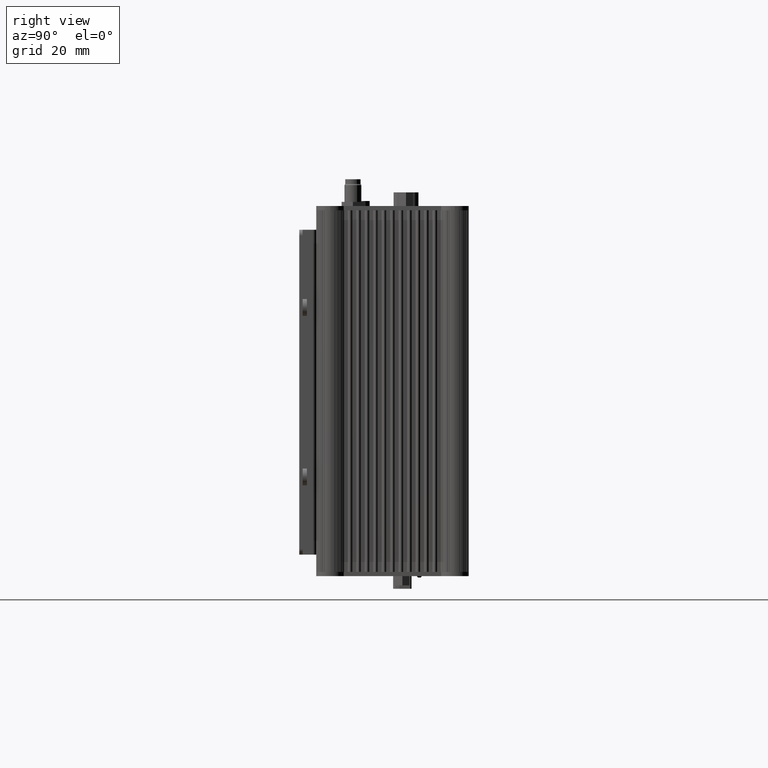
[diagram: clean part render]
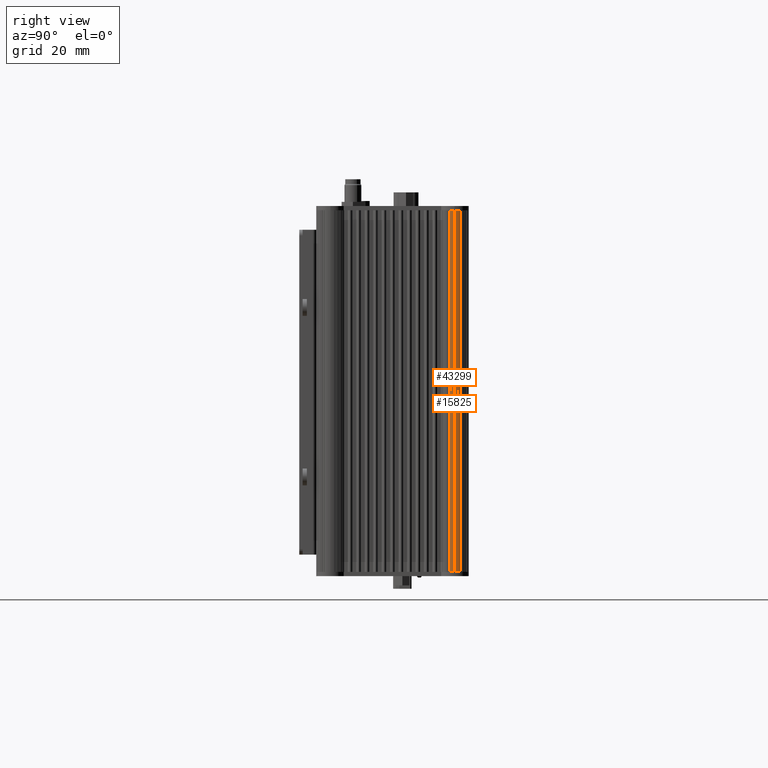
[diagram: same view with one multi-face feature highlighted, each face labeled with its STEP entity id]
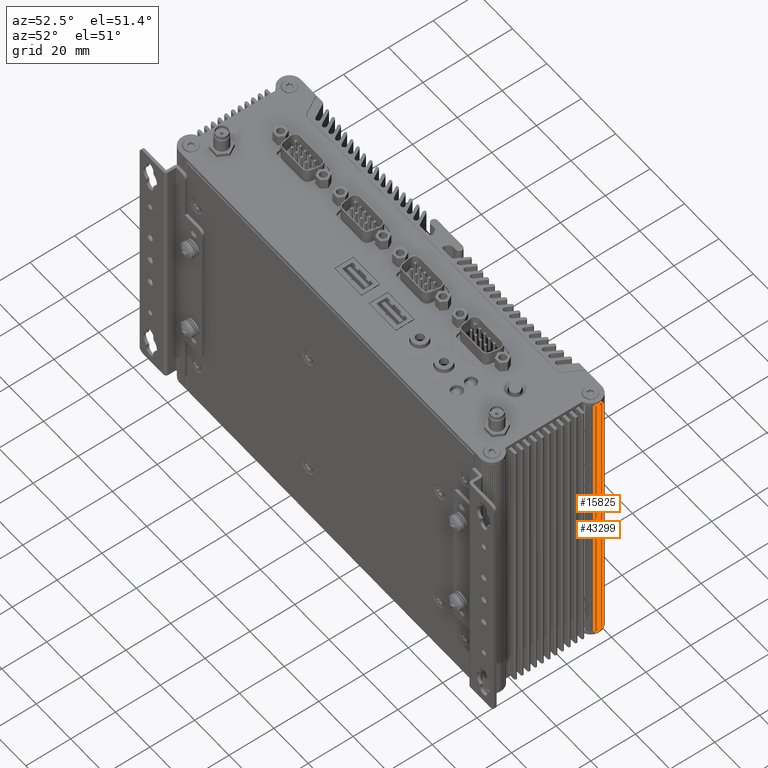
[diagram: same view with one multi-face feature highlighted, each face labeled with its STEP entity id]
A machine part, right view. The highlighted faces form ONE feature: a constant-radius fillet chain: 2 tangent blend faces with common blend radius 5 mm. The faces share edges in the B-rep.
A second angle (auxiliary view) of the same feature is appended — it is thin or edge-on in the first view.
Their STEP definitions:
[1] entity #15825 (Cylinder):
#350 = EDGE_CURVE ( 'NONE', #55630, #55328, #37267, .T. ) ;
#4861 = EDGE_CURVE ( 'NONE', #55328, #20845, #30022, .T. ) ;
#4862 = EDGE_CURVE ( 'NONE', #20237, #55630, #30026, .T. ) ;
#4868 = EDGE_CURVE ( 'NONE', #20237, #20845, #90871, .T. ) ;
#14861 = EDGE_LOOP ( 'NONE', ( #68562, #68561, #68560, #68559 ) ) ;
#15825 = ADVANCED_FACE ( 'NONE', ( #70659 ), #70662, .T. ) ;
#20237 = VERTEX_POINT ( 'NONE', #41203 ) ;
#20845 = VERTEX_POINT ( 'NONE', #41440 ) ;
#26281 = AXIS2_PLACEMENT_3D ( 'NONE', #70660, #70656, #70663 ) ;
#30022 = CIRCLE ( 'NONE', #30028, 5.000000000007928800 ) ;
#30026 = CIRCLE ( 'NONE', #30033, 5.000000000007928800 ) ;
#30028 = AXIS2_PLACEMENT_3D ( 'NONE', #90856, #90857, #90858 ) ;
#30033 = AXIS2_PLACEMENT_3D ( 'NONE', #90861, #90862, #90863 ) ;
#30051 = VECTOR ( 'NONE', #90879, 1000.000000000000000 ) ;
#37267 = LINE ( 'NONE', #37280, #62791 ) ;
#37280 = CARTESIAN_POINT ( 'NONE',  ( 120.8838196477089600, 13.78363130392962300, -130.9999999999813600 ) ) ;
#37287 = DIRECTION ( 'NONE',  ( 0.0000000000000000000, 0.0000000000000000000, 1.000000000000000000 ) ) ;
#41203 = CARTESIAN_POINT ( 'NONE',  ( 120.5039922049252500, 15.69517663207424500, -129.4999999999813600 ) ) ;
#41440 = CARTESIAN_POINT ( 'NONE',  ( 120.5039922049252500, 15.69517663207424500, -1.499999999981362200 ) ) ;
#55328 = VERTEX_POINT ( 'NONE', #91311 ) ;
#55630 = VERTEX_POINT ( 'NONE', #91613 ) ;
#62791 = VECTOR ( 'NONE', #37287, 1000.000000000000000 ) ;
#68559 = ORIENTED_EDGE ( 'NONE', *, *, #4861, .F. ) ;
#68560 = ORIENTED_EDGE ( 'NONE', *, *, #4868, .T. ) ;
#68561 = ORIENTED_EDGE ( 'NONE', *, *, #4862, .F. ) ;
#68562 = ORIENTED_EDGE ( 'NONE', *, *, #350, .F. ) ;
#70656 = DIRECTION ( 'NONE',  ( 0.0000000000000000000, 0.0000000000000000000, 1.000000000000000000 ) ) ;
#70659 = FACE_OUTER_BOUND ( 'NONE', #14861, .T. ) ;
#70660 = CARTESIAN_POINT ( 'NONE',  ( 115.8838196477010300, 13.78363130392962300, -130.9999999999813600 ) ) ;
#70662 = CYLINDRICAL_SURFACE ( 'NONE', #26281, 5.000000000007928800 ) ;
#70663 = DIRECTION ( 'NONE',  ( 1.000000000000000000, 0.0000000000000000000, 0.0000000000000000000 ) ) ;
#90856 = CARTESIAN_POINT ( 'NONE',  ( 115.8838196477010300, 13.78363130392962300, -1.499999999981362200 ) ) ;
#90857 = DIRECTION ( 'NONE',  ( -0.0000000000000000000, 0.0000000000000000000, 1.000000000000000000 ) ) ;
#90858 = DIRECTION ( 'NONE',  ( 1.000000000000000000, 0.0000000000000000000, 0.0000000000000000000 ) ) ;
#90861 = CARTESIAN_POINT ( 'NONE',  ( 115.8838196477010300, 13.78363130392962300, -129.4999999999813600 ) ) ;
#90862 = DIRECTION ( 'NONE',  ( 0.0000000000000000000, 0.0000000000000000000, -1.000000000000000000 ) ) ;
#90863 = DIRECTION ( 'NONE',  ( -1.000000000000000000, 0.0000000000000000000, 0.0000000000000000000 ) ) ;
#90871 = LINE ( 'NONE', #90872, #30051 ) ;
#90872 = CARTESIAN_POINT ( 'NONE',  ( 120.5039922049252500, 15.69517663207424500, -130.9999999999813600 ) ) ;
#90879 = DIRECTION ( 'NONE',  ( 0.0000000000000000000, 0.0000000000000000000, 1.000000000000000000 ) ) ;
#91311 = CARTESIAN_POINT ( 'NONE',  ( 120.8838196477089600, 13.78363130392962300, -1.499999999981362200 ) ) ;
#91613 = CARTESIAN_POINT ( 'NONE',  ( 120.8838196477089600, 13.78363130392962300, -129.4999999999813600 ) ) ;
[2] entity #43299 (Cylinder):
#314 = EDGE_CURVE ( 'NONE', #54419, #55328, #62725, .T. ) ;
#316 = EDGE_CURVE ( 'NONE', #55630, #55455, #62743, .T. ) ;
#349 = EDGE_CURVE ( 'NONE', #55455, #54419, #37248, .T. ) ;
#350 = EDGE_CURVE ( 'NONE', #55630, #55328, #37267, .T. ) ;
#13171 = EDGE_LOOP ( 'NONE', ( #52206, #52216, #52211, #52096 ) ) ;
#37248 = LINE ( 'NONE', #37252, #62787 ) ;
#37252 = CARTESIAN_POINT ( 'NONE',  ( 120.5977029717044600, 12.11650683114389600, -130.9999999999813600 ) ) ;
#37267 = LINE ( 'NONE', #37280, #62791 ) ;
#37278 = DIRECTION ( 'NONE',  ( 0.0000000000000000000, 0.0000000000000000000, 1.000000000000000000 ) ) ;
#37280 = CARTESIAN_POINT ( 'NONE',  ( 120.8838196477089600, 13.78363130392962300, -130.9999999999813600 ) ) ;
#37287 = DIRECTION ( 'NONE',  ( 0.0000000000000000000, 0.0000000000000000000, 1.000000000000000000 ) ) ;
#43299 = ADVANCED_FACE ( 'NONE', ( #92875 ), #92878, .T. ) ;
#43833 = AXIS2_PLACEMENT_3D ( 'NONE', #92876, #92868, #92879 ) ;
#52096 = ORIENTED_EDGE ( 'NONE', *, *, #349, .F. ) ;
#52206 = ORIENTED_EDGE ( 'NONE', *, *, #316, .F. ) ;
#52211 = ORIENTED_EDGE ( 'NONE', *, *, #314, .F. ) ;
#52216 = ORIENTED_EDGE ( 'NONE', *, *, #350, .T. ) ;
#53815 = CARTESIAN_POINT ( 'NONE',  ( 115.8838196477010300, 13.78363130392962300, -1.499999999981362200 ) ) ;
#53816 = DIRECTION ( 'NONE',  ( -0.0000000000000000000, 0.0000000000000000000, 1.000000000000000000 ) ) ;
#53817 = DIRECTION ( 'NONE',  ( 1.000000000000000000, 0.0000000000000000000, 0.0000000000000000000 ) ) ;
#53823 = CARTESIAN_POINT ( 'NONE',  ( 115.8838196477010300, 13.78363130392962300, -129.4999999999813600 ) ) ;
#53824 = DIRECTION ( 'NONE',  ( 0.0000000000000000000, 0.0000000000000000000, -1.000000000000000000 ) ) ;
#53825 = DIRECTION ( 'NONE',  ( -1.000000000000000000, 0.0000000000000000000, 0.0000000000000000000 ) ) ;
#54419 = VERTEX_POINT ( 'NONE', #55685 ) ;
#55328 = VERTEX_POINT ( 'NONE', #91311 ) ;
#55455 = VERTEX_POINT ( 'NONE', #91438 ) ;
#55630 = VERTEX_POINT ( 'NONE', #91613 ) ;
#55685 = CARTESIAN_POINT ( 'NONE',  ( 120.5977029717044600, 12.11650683114389600, -1.499999999981362200 ) ) ;
#62725 = CIRCLE ( 'NONE', #62726, 5.000000000007928800 ) ;
#62726 = AXIS2_PLACEMENT_3D ( 'NONE', #53815, #53816, #53817 ) ;
#62730 = AXIS2_PLACEMENT_3D ( 'NONE', #53823, #53824, #53825 ) ;
#62743 = CIRCLE ( 'NONE', #62730, 5.000000000007928800 ) ;
#62787 = VECTOR ( 'NONE', #37278, 1000.000000000000000 ) ;
#62791 = VECTOR ( 'NONE', #37287, 1000.000000000000000 ) ;
#91311 = CARTESIAN_POINT ( 'NONE',  ( 120.8838196477089600, 13.78363130392962300, -1.499999999981362200 ) ) ;
#91438 = CARTESIAN_POINT ( 'NONE',  ( 120.5977029717044900, 12.11650683114390300, -129.4999999999813600 ) ) ;
#91613 = CARTESIAN_POINT ( 'NONE',  ( 120.8838196477089600, 13.78363130392962300, -129.4999999999813600 ) ) ;
#92868 = DIRECTION ( 'NONE',  ( 0.0000000000000000000, 0.0000000000000000000, 1.000000000000000000 ) ) ;
#92875 = FACE_OUTER_BOUND ( 'NONE', #13171, .T. ) ;
#92876 = CARTESIAN_POINT ( 'NONE',  ( 115.8838196477010300, 13.78363130392962300, -130.9999999999813600 ) ) ;
#92878 = CYLINDRICAL_SURFACE ( 'NONE', #43833, 5.000000000007928800 ) ;
#92879 = DIRECTION ( 'NONE',  ( 1.000000000000000000, 0.0000000000000000000, 0.0000000000000000000 ) ) ;